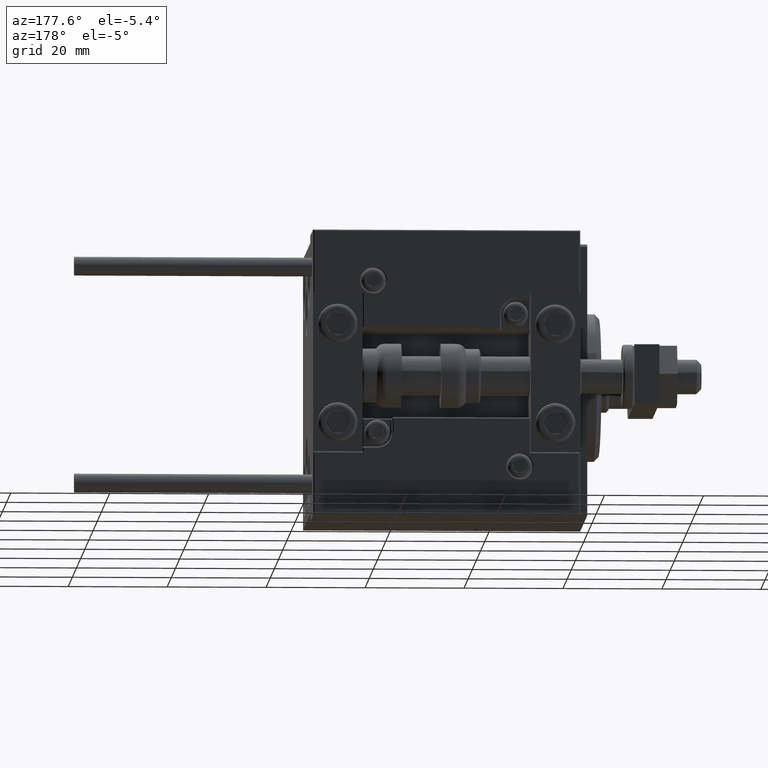
[diagram: clean part render]
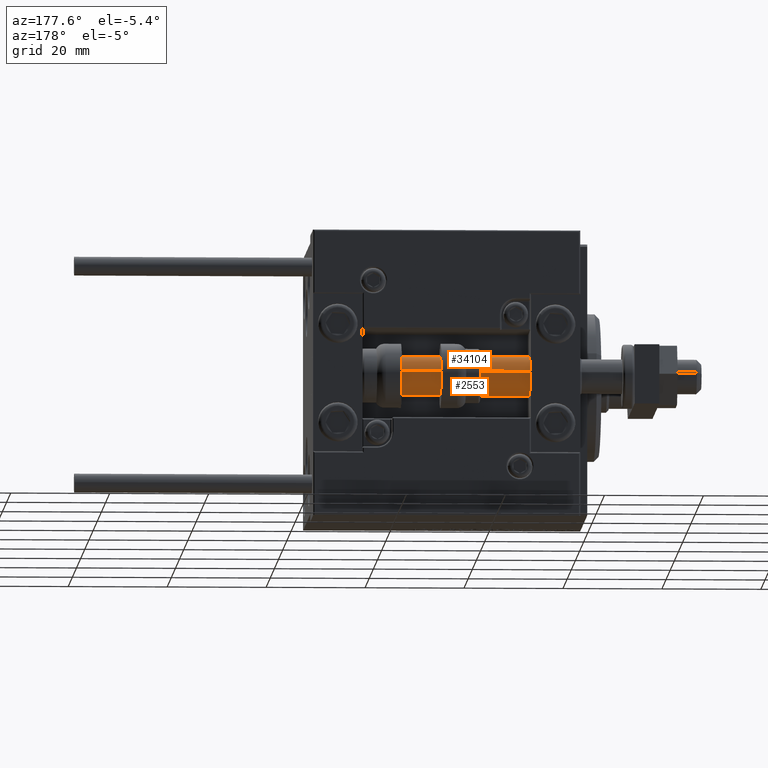
[diagram: same view with one multi-face feature highlighted, each face labeled with its STEP entity id]
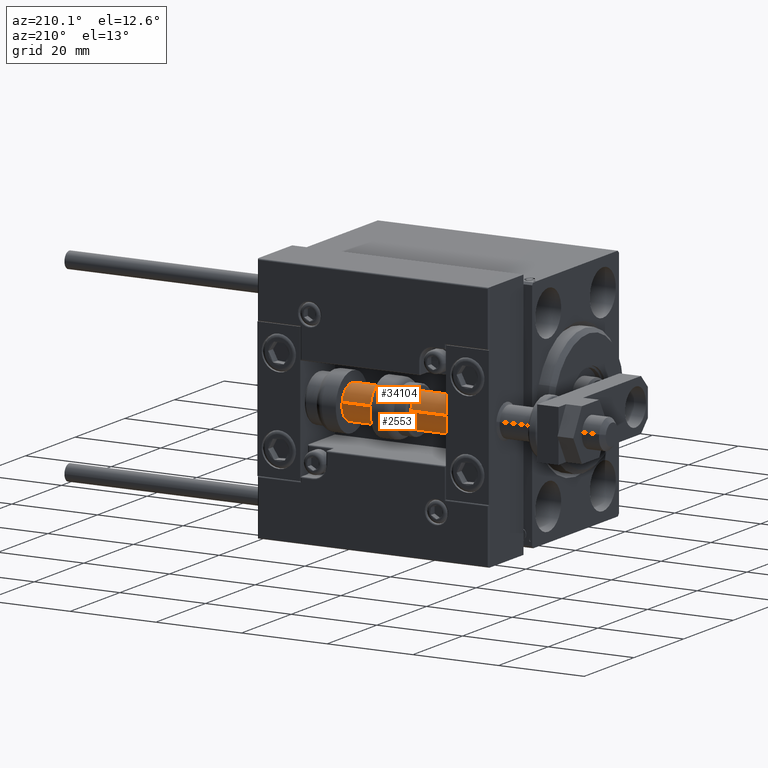
[diagram: same view with one multi-face feature highlighted, each face labeled with its STEP entity id]
A machine part, auxiliary view. The highlighted faces form ONE feature: a constant-radius fillet chain: 2 tangent blend faces with common blend radius 4 mm. The faces share edges in the B-rep.
A second angle (auxiliary view) of the same feature is appended — it is thin or edge-on in the first view.
Their STEP definitions:
[1] entity #34104 (Cylinder):
#683 = CIRCLE ( 'NONE', #43672, 4.000000000000000000 ) ;
#1224 = CARTESIAN_POINT ( 'NONE',  ( -4.000000000000000000, 0.000000000000000000, 56.00000000000000000 ) ) ;
#1888 = EDGE_CURVE ( 'NONE', #39390, #20076, #29930, .T. ) ;
#2905 = CARTESIAN_POINT ( 'NONE',  ( -4.000000000000000000, 0.000000000000000000, 56.00000000000000000 ) ) ;
#4130 = DIRECTION ( 'NONE',  ( 1.000000000000000000, 0.000000000000000000, 0.000000000000000000 ) ) ;
#4372 = DIRECTION ( 'NONE',  ( -0.000000000000000000, -0.000000000000000000, 1.000000000000000000 ) ) ;
#5292 = CARTESIAN_POINT ( 'NONE',  ( 0.000000000000000000, 0.000000000000000000, 56.00000000000000000 ) ) ;
#5817 = CARTESIAN_POINT ( 'NONE',  ( 4.000000000000000000, 4.898587196589412829E-16, 56.00000000000000000 ) ) ;
#8235 = CARTESIAN_POINT ( 'NONE',  ( -4.000000000000000000, 0.000000000000000000, 2.000000000000036415 ) ) ;
#8539 = AXIS2_PLACEMENT_3D ( 'NONE', #5292, #17716, #33210 ) ;
#9092 = CYLINDRICAL_SURFACE ( 'NONE', #8539, 4.000000000000000000 ) ;
#11697 = EDGE_CURVE ( 'NONE', #39197, #26596, #32682, .T. ) ;
#14379 = DIRECTION ( 'NONE',  ( 0.000000000000000000, 0.000000000000000000, 1.000000000000000000 ) ) ;
#17716 = DIRECTION ( 'NONE',  ( -0.000000000000000000, -0.000000000000000000, -1.000000000000000000 ) ) ;
#18384 = EDGE_CURVE ( 'NONE', #39390, #39197, #26200, .T. ) ;
#20076 = VERTEX_POINT ( 'NONE', #48982 ) ;
#20284 = ORIENTED_EDGE ( 'NONE', *, *, #18384, .F. ) ;
#21303 = DIRECTION ( 'NONE',  ( -0.000000000000000000, -0.000000000000000000, -1.000000000000000000 ) ) ;
#23415 = CARTESIAN_POINT ( 'NONE',  ( 0.000000000000000000, 0.000000000000000000, 56.00000000000000000 ) ) ;
#24571 = AXIS2_PLACEMENT_3D ( 'NONE', #23415, #14379, #4130 ) ;
#25765 = ORIENTED_EDGE ( 'NONE', *, *, #47693, .T. ) ;
#26040 = EDGE_LOOP ( 'NONE', ( #20284, #36115, #25765, #29327 ) ) ;
#26200 = CIRCLE ( 'NONE', #24571, 4.000000000000000000 ) ;
#26596 = VERTEX_POINT ( 'NONE', #8235 ) ;
#29327 = ORIENTED_EDGE ( 'NONE', *, *, #11697, .F. ) ;
#29930 = LINE ( 'NONE', #5817, #35937 ) ;
#32682 = LINE ( 'NONE', #1224, #46286 ) ;
#33210 = DIRECTION ( 'NONE',  ( -1.000000000000000000, 0.000000000000000000, 0.000000000000000000 ) ) ;
#34104 = ADVANCED_FACE ( 'NONE', ( #44913 ), #9092, .T. ) ;
#35937 = VECTOR ( 'NONE', #21303, 1000.000000000000000 ) ;
#36115 = ORIENTED_EDGE ( 'NONE', *, *, #1888, .T. ) ;
#39197 = VERTEX_POINT ( 'NONE', #2905 ) ;
#39390 = VERTEX_POINT ( 'NONE', #48832 ) ;
#42483 = CARTESIAN_POINT ( 'NONE',  ( 0.000000000000000000, 0.000000000000000000, 2.000000000000036415 ) ) ;
#43672 = AXIS2_PLACEMENT_3D ( 'NONE', #42483, #4372, #46042 ) ;
#44913 = FACE_OUTER_BOUND ( 'NONE', #26040, .T. ) ;
#46042 = DIRECTION ( 'NONE',  ( 1.000000000000000000, 0.000000000000000000, 0.000000000000000000 ) ) ;
#46286 = VECTOR ( 'NONE', #48212, 1000.000000000000000 ) ;
#47693 = EDGE_CURVE ( 'NONE', #20076, #26596, #683, .T. ) ;
#48212 = DIRECTION ( 'NONE',  ( -0.000000000000000000, -0.000000000000000000, -1.000000000000000000 ) ) ;
#48832 = CARTESIAN_POINT ( 'NONE',  ( 4.000000000000000000, 4.898587196589412829E-16, 56.00000000000000000 ) ) ;
#48982 = CARTESIAN_POINT ( 'NONE',  ( 4.000000000000000000, 4.898587196589412829E-16, 2.000000000000036415 ) ) ;
[2] entity #2553 (Cylinder):
#1224 = CARTESIAN_POINT ( 'NONE',  ( -4.000000000000000000, 0.000000000000000000, 56.00000000000000000 ) ) ;
#1888 = EDGE_CURVE ( 'NONE', #39390, #20076, #29930, .T. ) ;
#2553 = ADVANCED_FACE ( 'NONE', ( #45519 ), #45768, .T. ) ;
#2905 = CARTESIAN_POINT ( 'NONE',  ( -4.000000000000000000, 0.000000000000000000, 56.00000000000000000 ) ) ;
#3243 = AXIS2_PLACEMENT_3D ( 'NONE', #46688, #26091, #18481 ) ;
#5464 = DIRECTION ( 'NONE',  ( 1.000000000000000000, 0.000000000000000000, 0.000000000000000000 ) ) ;
#5493 = ORIENTED_EDGE ( 'NONE', *, *, #11697, .T. ) ;
#5817 = CARTESIAN_POINT ( 'NONE',  ( 4.000000000000000000, 4.898587196589412829E-16, 56.00000000000000000 ) ) ;
#5961 = DIRECTION ( 'NONE',  ( 0.000000000000000000, 0.000000000000000000, 1.000000000000000000 ) ) ;
#7020 = EDGE_CURVE ( 'NONE', #26596, #20076, #41395, .T. ) ;
#8089 = ORIENTED_EDGE ( 'NONE', *, *, #1888, .F. ) ;
#8235 = CARTESIAN_POINT ( 'NONE',  ( -4.000000000000000000, 0.000000000000000000, 2.000000000000036415 ) ) ;
#11697 = EDGE_CURVE ( 'NONE', #39197, #26596, #32682, .T. ) ;
#18433 = ORIENTED_EDGE ( 'NONE', *, *, #25506, .F. ) ;
#18481 = DIRECTION ( 'NONE',  ( 1.000000000000000000, 0.000000000000000000, 0.000000000000000000 ) ) ;
#20076 = VERTEX_POINT ( 'NONE', #48982 ) ;
#21303 = DIRECTION ( 'NONE',  ( -0.000000000000000000, -0.000000000000000000, -1.000000000000000000 ) ) ;
#25506 = EDGE_CURVE ( 'NONE', #39197, #39390, #37721, .T. ) ;
#26091 = DIRECTION ( 'NONE',  ( -0.000000000000000000, -0.000000000000000000, 1.000000000000000000 ) ) ;
#26596 = VERTEX_POINT ( 'NONE', #8235 ) ;
#26599 = AXIS2_PLACEMENT_3D ( 'NONE', #49336, #30502, #38153 ) ;
#26844 = ORIENTED_EDGE ( 'NONE', *, *, #7020, .T. ) ;
#29930 = LINE ( 'NONE', #5817, #35937 ) ;
#30502 = DIRECTION ( 'NONE',  ( -0.000000000000000000, -0.000000000000000000, -1.000000000000000000 ) ) ;
#32682 = LINE ( 'NONE', #1224, #46286 ) ;
#35937 = VECTOR ( 'NONE', #21303, 1000.000000000000000 ) ;
#36080 = AXIS2_PLACEMENT_3D ( 'NONE', #47913, #5961, #5464 ) ;
#37721 = CIRCLE ( 'NONE', #36080, 4.000000000000000000 ) ;
#38153 = DIRECTION ( 'NONE',  ( -1.000000000000000000, 0.000000000000000000, 0.000000000000000000 ) ) ;
#39197 = VERTEX_POINT ( 'NONE', #2905 ) ;
#39390 = VERTEX_POINT ( 'NONE', #48832 ) ;
#41395 = CIRCLE ( 'NONE', #3243, 4.000000000000000000 ) ;
#43301 = EDGE_LOOP ( 'NONE', ( #8089, #18433, #5493, #26844 ) ) ;
#45519 = FACE_OUTER_BOUND ( 'NONE', #43301, .T. ) ;
#45768 = CYLINDRICAL_SURFACE ( 'NONE', #26599, 4.000000000000000000 ) ;
#46286 = VECTOR ( 'NONE', #48212, 1000.000000000000000 ) ;
#46688 = CARTESIAN_POINT ( 'NONE',  ( 0.000000000000000000, 0.000000000000000000, 2.000000000000036415 ) ) ;
#47913 = CARTESIAN_POINT ( 'NONE',  ( 0.000000000000000000, 0.000000000000000000, 56.00000000000000000 ) ) ;
#48212 = DIRECTION ( 'NONE',  ( -0.000000000000000000, -0.000000000000000000, -1.000000000000000000 ) ) ;
#48832 = CARTESIAN_POINT ( 'NONE',  ( 4.000000000000000000, 4.898587196589412829E-16, 56.00000000000000000 ) ) ;
#48982 = CARTESIAN_POINT ( 'NONE',  ( 4.000000000000000000, 4.898587196589412829E-16, 2.000000000000036415 ) ) ;
#49336 = CARTESIAN_POINT ( 'NONE',  ( 0.000000000000000000, 0.000000000000000000, 56.00000000000000000 ) ) ;